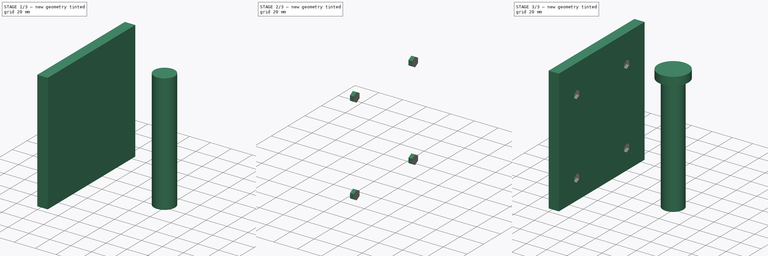
[diagram: build sequence overview — one tinted view per stage of 3, left to right]
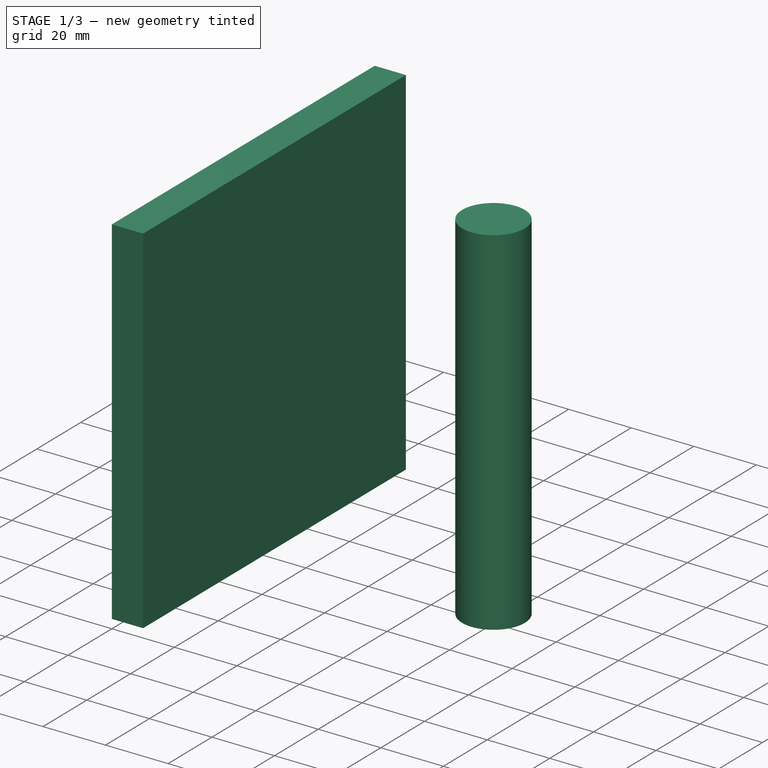
[diagram: stage 1 of 3 — iso view after this stage's code; geometry added in this stage tinted green]
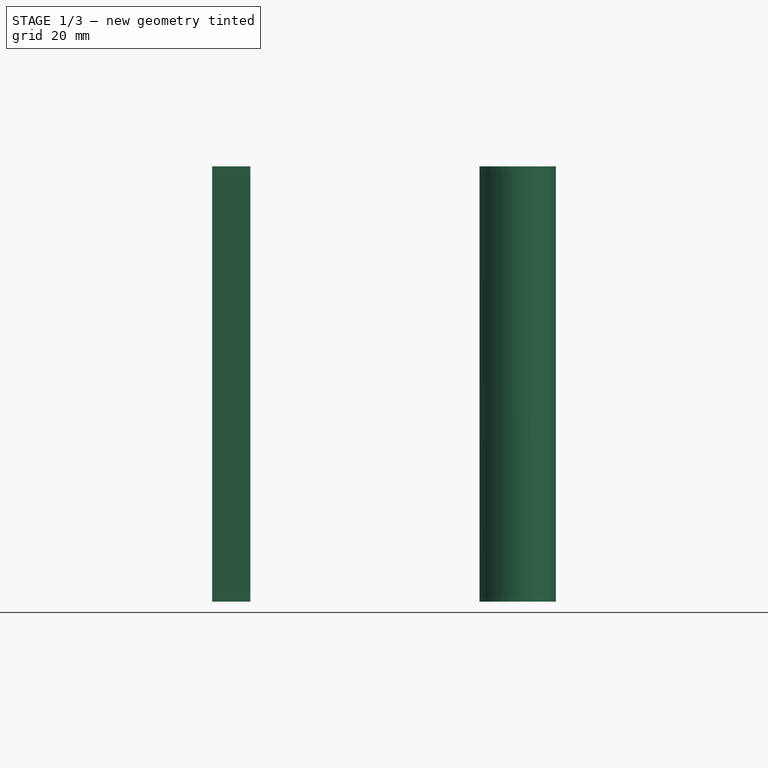
[diagram: stage 1 of 3 — front view after this stage's code; geometry added in this stage tinted green]
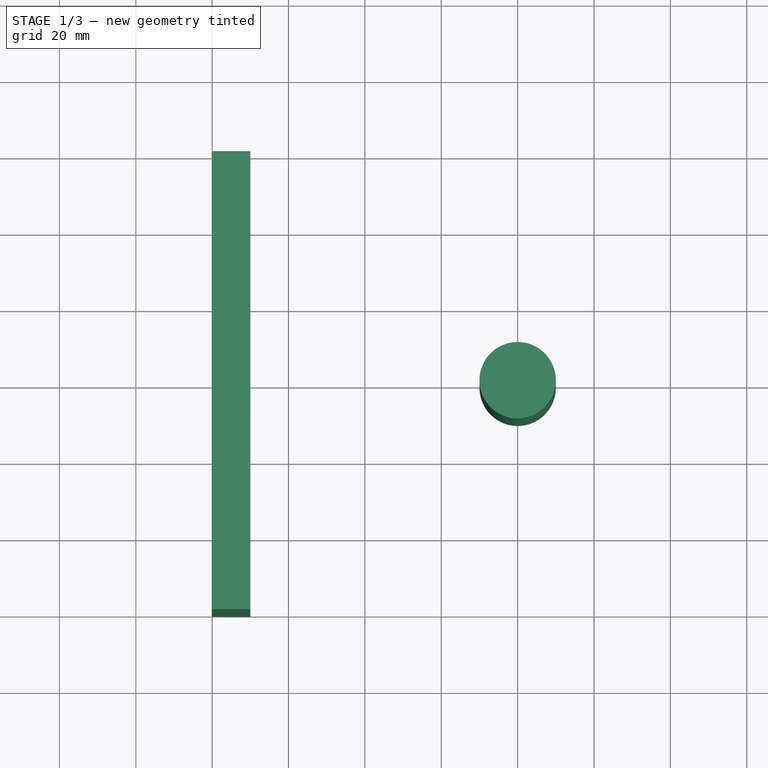
[diagram: stage 1 of 3 — top view after this stage's code; geometry added in this stage tinted green]
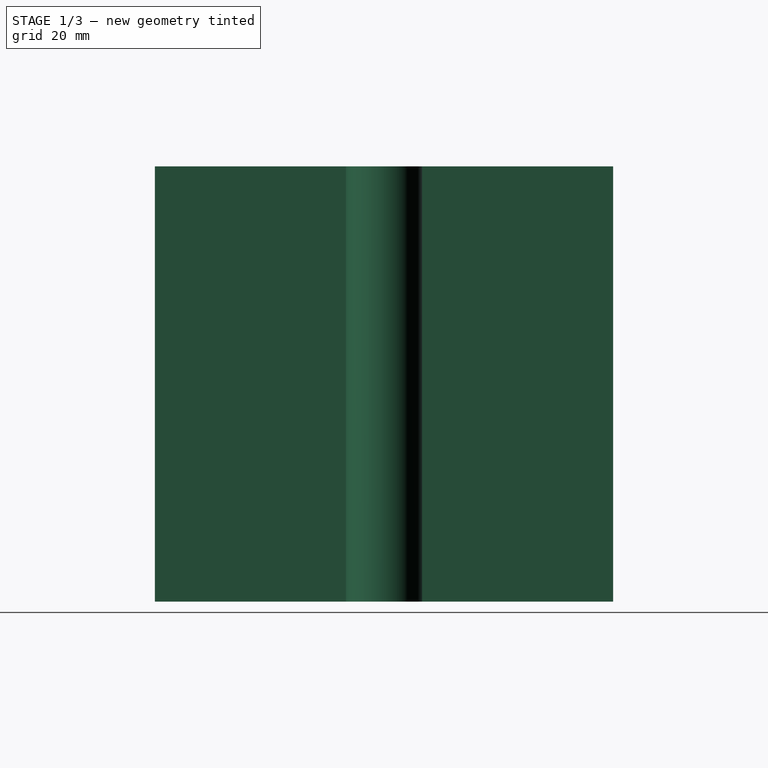
[diagram: stage 1 of 3 — right view after this stage's code; geometry added in this stage tinted green]
FCSTD DOCUMENT  (FreeCAD 0.20R29177 (Git))
Label: TPHolder
License: All rights reserved
LicenseURL: http://en.wikipedia.org/wiki/All_rights_reserved
objects: Sketcher::SketchObject×5, Part::Face×5, Part::Extrusion×5, Part::Cut×2, App::LinkGroup×1
note: 17 computed .brp shape members not serialized (recipe doc carries the construction recipe); baked Part::Feature solids carry a one-line shape summary decoded from their .brp

FEATURE [Sketcher::SketchObject] Sketch
  FullyConstrained = false
  sketch-geometry (12):
    g0: LineSegment StartX=0 StartY=0 StartZ=0 EndX=9.99986 EndY=0 EndZ=0
    g1: LineSegment StartX=9.99986 StartY=0 StartZ=0 EndX=9.99986 EndY=25 EndZ=0
    g2: LineSegment StartX=10 StartY=120 StartZ=0 EndX=0 EndY=120 EndZ=0
    g3: LineSegment StartX=0 StartY=120 StartZ=0 EndX=0 EndY=0 EndZ=0
    g4: LineSegment StartX=79.9999 StartY=60 StartZ=0 EndX=9.99986 EndY=60 EndZ=0
    g5: LineSegment StartX=79.9999 StartY=75 StartZ=0 EndX=79.9999 EndY=45 EndZ=0
    g6: LineSegment StartX=79.9999 StartY=45 StartZ=0 EndX=29.9999 EndY=45 EndZ=0
    g7: LineSegment StartX=79.9999 StartY=75 StartZ=0 EndX=30 EndY=75 EndZ=0
    g8: ArcOfCircle CenterX=29.9999 CenterY=25 CenterZ=0 NormalX=0 NormalY=0 NormalZ=1 AngleXU=0 Radius=20 StartAngle=1.5708 EndAngle=3.14159
    g9: LineSegment StartX=10 StartY=120 StartZ=0 EndX=10 EndY=95 EndZ=0
    g10: ArcOfCircle CenterX=30 CenterY=95 CenterZ=0 NormalX=0 NormalY=0 NormalZ=1 AngleXU=0 Radius=20 StartAngle=3.14159 EndAngle=4.71239
    g11: ArcOfCircle CenterX=79.9999 CenterY=60 CenterZ=0 NormalX=0 NormalY=0 NormalZ=1 AngleXU=0 Radius=15 StartAngle=4.71239 EndAngle=7.85398
  constraints (29):
    c: Coincident(g0,g1)
    c: Coincident(g2,g3)
    c: Coincident(g3,g0)
    c: Horizontal(g0)
    c: Horizontal(g2)
    c: Vertical(g1)
    c: Vertical(g3)
    c: Coincident(g0,g-1)
    c: DistanceY(g1,g2) = 120
    c: DistanceX(g2,g2) = 10
    c: PointOnObject(g4,g1)
    c: Perpendicular(g4,g1)
    c: DistanceY(g0,g4) = 60
    c: Vertical(g5)
    c: Coincident(g6,g5)
    c: Horizontal(g6)
    c: Coincident(g7,g5)
    c: Horizontal(g7)
    c: Tangent(g6,g8) = -1.5708
    c: Tangent(g1,g8) = 1.5708
    c: Coincident(g9,g2)
    c: Vertical(g9)
    c: Tangent(g7,g10) = 1.5708
    c: Tangent(g9,g10) = -1.5708
    c: Diameter(g10) = 40
    c: Diameter(g8) = 40
    c: Coincident(g11,g4)
    c: Coincident(g11,g7)
    c: Coincident(g11,g6)
FEATURE [Part::Face] Face
  FaceMakerClass = Part::FaceMakerBullseye
  Sources = -> [Sketch]
FEATURE [Part::Extrusion] Extrude
  Base = -> Face
  Dir = (0,0,1)
  DirMode = 2
  FaceMakerClass = Part::FaceMakerBullseye
  LengthFwd = 8
  LengthRev = 0
  Solid = false
  Symmetric = false
FEATURE [Sketcher::SketchObject] Sketch001
  ExternalGeometry = -> [Extrude]
  FullyConstrained = true
  MapMode = 5
  Placement = pos=(0,0,8) rot=(0,0,1;0rad)
  Support = -> [Extrude]
  sketch-geometry (5):
    g0: LineSegment StartX=10 StartY=120 StartZ=0 EndX=0 EndY=120 EndZ=0
    g1: LineSegment StartX=0 StartY=120 StartZ=0 EndX=0 EndY=0 EndZ=0
    g2: LineSegment StartX=0 StartY=0 StartZ=0 EndX=10 EndY=0 EndZ=0
    g3: LineSegment StartX=10 StartY=0 StartZ=0 EndX=10 EndY=120 EndZ=0
    g4: Circle CenterX=80 CenterY=60 CenterZ=0 NormalX=0 NormalY=0 NormalZ=1 AngleXU=0 Radius=10
  constraints (13):
    c: Coincident(g0,g1)
    c: Coincident(g1,g2)
    c: Coincident(g2,g3)
    c: Coincident(g3,g0)
    c: Horizontal(g0)
    c: Horizontal(g2)
    c: Vertical(g1)
    c: Vertical(g3)
    c: Coincident(g0,g-4)
    c: Coincident(g1,g-3)
    c: DistanceY(g2,g4) = 60
    c: DistanceX(g2,g4) = 70
    c: Diameter(g4) = 20
FEATURE [Part::Face] Face001
  FaceMakerClass = Part::FaceMakerBullseye
  Sources = -> [Sketch001]
FEATURE [Part::Extrusion] Extrude001
  Base = -> Sketch001
  Dir = (0,0,1)
  DirMode = 2
  FaceMakerClass = Part::FaceMakerBullseye
  LengthFwd = 114
  LengthRev = 0
  Solid = true
  Symmetric = false
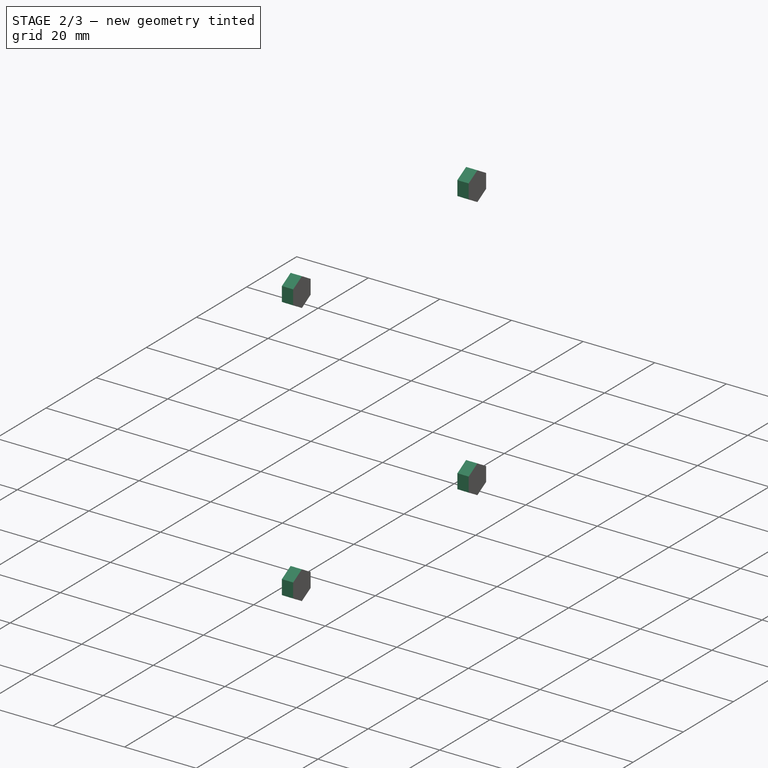
[diagram: stage 2 of 3 — iso view after this stage's code; geometry added in this stage tinted green]
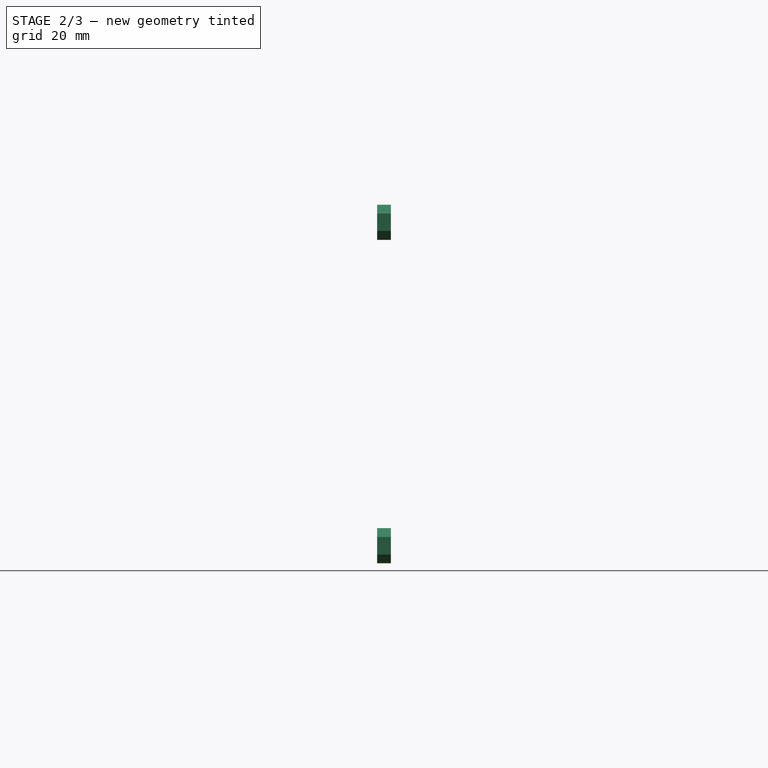
[diagram: stage 2 of 3 — front view after this stage's code; geometry added in this stage tinted green]
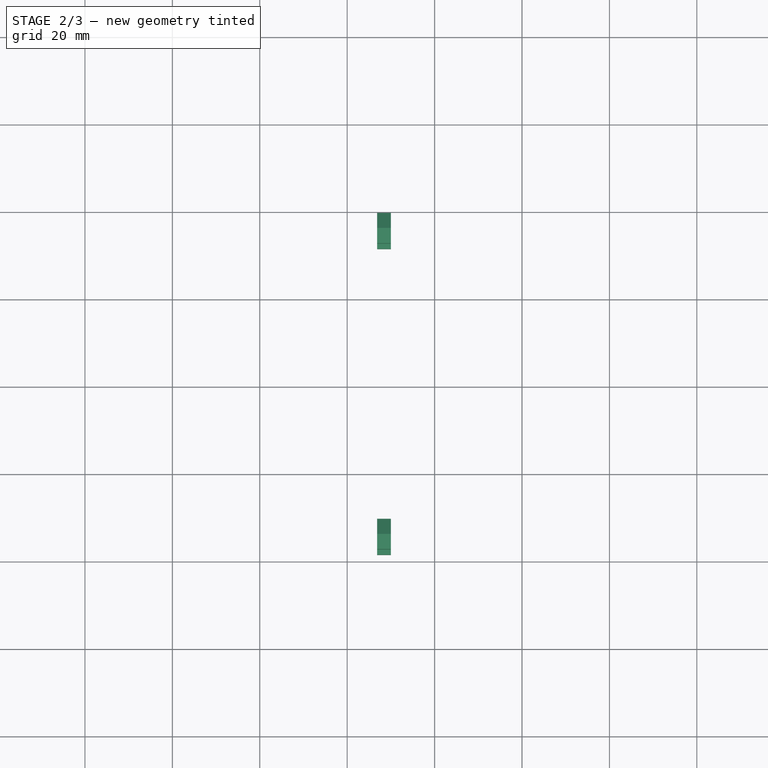
[diagram: stage 2 of 3 — top view after this stage's code; geometry added in this stage tinted green]
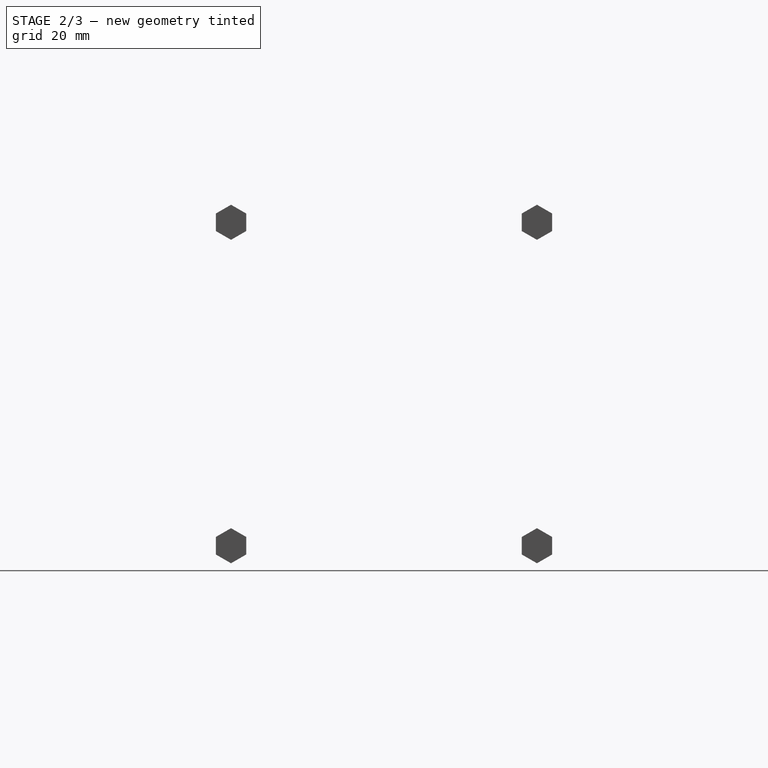
[diagram: stage 2 of 3 — right view after this stage's code; geometry added in this stage tinted green]
FEATURE [Sketcher::SketchObject] Sketch003
  ExternalGeometry = -> [Extrude001,Face001]
  FullyConstrained = true
  MapMode = 5
  Placement = pos=(10,0,0) rot=(0.57735,0.57735,0.57735;2.0944rad)
  Support = -> [Extrude001]
  sketch-geometry (4):
    g0: Circle CenterX=25 CenterY=102 CenterZ=0 NormalX=0 NormalY=0 NormalZ=1 AngleXU=0 Radius=2
    g1: Circle CenterX=95 CenterY=102 CenterZ=0 NormalX=0 NormalY=0 NormalZ=1 AngleXU=0 Radius=2
    g2: Circle CenterX=95 CenterY=28 CenterZ=0 NormalX=0 NormalY=0 NormalZ=1 AngleXU=0 Radius=2
    g3: Circle CenterX=25 CenterY=28 CenterZ=0 NormalX=0 NormalY=0 NormalZ=1 AngleXU=0 Radius=2
  constraints (12):
    c: Vertical(g0,g3)
    c: Vertical(g2,g1)
    c: Horizontal(g0,g1)
    c: Horizontal(g3,g2)
    c: DistanceX(g-1,g3) = 25
    c: DistanceY(g-5,g3) = 20
    c: DistanceY(g0,g-3) = 20
    c: Diameter(g0) = 4
    c: Diameter(g1) = 4
    c: Diameter(g3) = 4
    c: Diameter(g2) = 4
    c: DistanceX(g1,g-4) = 25
FEATURE [Part::Face] Face003
  FaceMakerClass = Part::FaceMakerBullseye
  Sources = -> [Sketch003]
FEATURE [Part::Extrusion] Extrude003
  Base = -> Face003
  Dir = (1,0,0)
  DirMode = 2
  FaceMakerClass = Part::FaceMakerBullseye
  LengthFwd = -10
  LengthRev = 0
  Solid = false
  Symmetric = false
FEATURE [Part::Cut] Cut
  Base = -> Extrude001
  Tool = -> Extrude003
FEATURE [Sketcher::SketchObject] Sketch004
  ExternalGeometry = -> [Sketch003]
  FullyConstrained = true
  MapMode = 5
  Placement = pos=(10,0,0) rot=(0.57735,0.57735,0.57735;2.0944rad)
  Support = -> [Cut]
  sketch-geometry (28):
    g0: LineSegment StartX=28.475 StartY=30.0063 StartZ=0 EndX=25 EndY=32.0126 EndZ=0
    g1: LineSegment StartX=25 StartY=32.0126 StartZ=0 EndX=21.525 EndY=30.0063 EndZ=0
    g2: LineSegment StartX=21.525 StartY=30.0063 StartZ=0 EndX=21.525 EndY=25.9937 EndZ=0
    g3: LineSegment StartX=21.525 StartY=25.9937 StartZ=0 EndX=25 EndY=23.9874 EndZ=0
    g4: LineSegment StartX=25 StartY=23.9874 StartZ=0 EndX=28.475 EndY=25.9937 EndZ=0
    g5: LineSegment StartX=28.475 StartY=25.9937 StartZ=0 EndX=28.475 EndY=30.0063 EndZ=0
    g6: Circle CenterX=25 CenterY=28 CenterZ=0 NormalX=0 NormalY=0 NormalZ=1 AngleXU=0 Radius=4.01258
    g7: LineSegment StartX=98.475 StartY=30.0063 StartZ=0 EndX=95 EndY=32.0126 EndZ=0
    g8: LineSegment StartX=95 StartY=32.0126 StartZ=0 EndX=91.525 EndY=30.0063 EndZ=0
    g9: LineSegment StartX=91.525 StartY=30.0063 StartZ=0 EndX=91.525 EndY=25.9937 EndZ=0
    g10: LineSegment StartX=91.525 StartY=25.9937 StartZ=0 EndX=95 EndY=23.9874 EndZ=0
    g11: LineSegment StartX=95 StartY=23.9874 StartZ=0 EndX=98.475 EndY=25.9937 EndZ=0
    g12: LineSegment StartX=98.475 StartY=25.9937 StartZ=0 EndX=98.475 EndY=30.0063 EndZ=0
    g13: Circle CenterX=95 CenterY=28 CenterZ=0 NormalX=0 NormalY=0 NormalZ=1 AngleXU=0 Radius=4.01258
    g14: LineSegment StartX=28.475 StartY=104.006 StartZ=0 EndX=25 EndY=106.013 EndZ=0
    g15: LineSegment StartX=25 StartY=106.013 StartZ=0 EndX=21.525 EndY=104.006 EndZ=0
    g16: LineSegment StartX=21.525 StartY=104.006 StartZ=0 EndX=21.525 EndY=99.9937 EndZ=0
    g17: LineSegment StartX=21.525 StartY=99.9937 StartZ=0 EndX=25 EndY=97.9874 EndZ=0
    g18: LineSegment StartX=25 StartY=97.9874 StartZ=0 EndX=28.475 EndY=99.9937 EndZ=0
    g19: LineSegment StartX=28.475 StartY=99.9937 StartZ=0 EndX=28.475 EndY=104.006 EndZ=0
    g20: Circle CenterX=25 CenterY=102 CenterZ=0 NormalX=0 NormalY=0 NormalZ=1 AngleXU=0 Radius=4.01258
    g21: LineSegment StartX=98.475 StartY=104.006 StartZ=0 EndX=95 EndY=106.013 EndZ=0
    g22: LineSegment StartX=95 StartY=106.013 StartZ=0 EndX=91.525 EndY=104.006 EndZ=0
    g23: LineSegment StartX=91.525 StartY=104.006 StartZ=0 EndX=91.525 EndY=99.9937 EndZ=0
    g24: LineSegment StartX=91.525 StartY=99.9937 StartZ=0 EndX=95 EndY=97.9874 EndZ=0
    g25: LineSegment StartX=95 StartY=97.9874 StartZ=0 EndX=98.475 EndY=99.9937 EndZ=0
    g26: LineSegment StartX=98.475 StartY=99.9937 StartZ=0 EndX=98.475 EndY=104.006 EndZ=0
    g27: Circle CenterX=95 CenterY=102 CenterZ=0 NormalX=0 NormalY=0 NormalZ=1 AngleXU=0 Radius=4.01258
  constraints (64):
    c: Coincident(g0,g1)
    c: Coincident(g1,g2)
    c: Coincident(g2,g3)
    c: Coincident(g3,g4)
    c: Coincident(g4,g5)
    c: Coincident(g5,g0)
    c: Equal(g0, g1-g5) x5
    c: PointOnObject(g0,g6)
    c: PointOnObject(g1,g6)
    c: PointOnObject(g2,g6)
    c: PointOnObject(g3,g6)
    c: PointOnObject(g4,g6)
    c: PointOnObject(g5,g6)
    c: Coincident(g6,g-6)
    c: Coincident(g7,g8)
    c: Coincident(g8,g9)
    c: Coincident(g9,g10)
    c: Coincident(g10,g11)
    c: Coincident(g11,g12)
    c: Coincident(g12,g7)
    c: Equal(g7, g8-g12) x5
    c: PointOnObject(g7,g13)
    c: PointOnObject(g8,g13)
    c: PointOnObject(g9,g13)
    c: PointOnObject(g10,g13)
    c: PointOnObject(g11,g13)
    c: PointOnObject(g12,g13)
    c: Coincident(g13,g-5)
    c: Coincident(g14,g15)
    c: Coincident(g15,g16)
    c: Coincident(g16,g17)
    c: Coincident(g17,g18)
    c: Coincident(g18,g19)
    c: Coincident(g19,g14)
    c: Equal(g14, g15-g19) x5
    c: PointOnObject(g14,g20)
    c: PointOnObject(g15,g20)
    c: PointOnObject(g16,g20)
    c: PointOnObject(g17,g20)
    c: PointOnObject(g18,g20)
    c: PointOnObject(g19,g20)
    c: Coincident(g20,g-3)
    c: Coincident(g21,g22)
    c: Coincident(g22,g23)
    c: Coincident(g23,g24)
    c: Coincident(g24,g25)
    c: Coincident(g25,g26)
    c: Coincident(g26,g21)
    c: Equal(g21, g22-g26) x5
    c: PointOnObject(g21,g27)
    c: PointOnObject(g22,g27)
    c: PointOnObject(g23,g27)
    c: PointOnObject(g24,g27)
    c: PointOnObject(g25,g27)
    c: PointOnObject(g26,g27)
    c: Coincident(g27,g-4)
    c: Parallel(g-2,g16)
    c: Parallel(g-2,g23)
    c: Parallel(g-2,g2)
    c: Parallel(g-2,g9)
    c: DistanceX(g1,g0) = 6.95
    c: DistanceX(g8,g7) = 6.95
    c: DistanceX(g15,g14) = 6.95
    c: DistanceX(g22,g21) = 6.95
FEATURE [Part::Face] Face004
  FaceMakerClass = Part::FaceMakerBullseye
  Sources = -> [Sketch004]
FEATURE [Part::Extrusion] Extrude004
  Base = -> Face004
  Dir = (1,0,0)
  DirMode = 2
  FaceMakerClass = Part::FaceMakerBullseye
  LengthFwd = -3.15
  LengthRev = 0
  Solid = false
  Symmetric = false
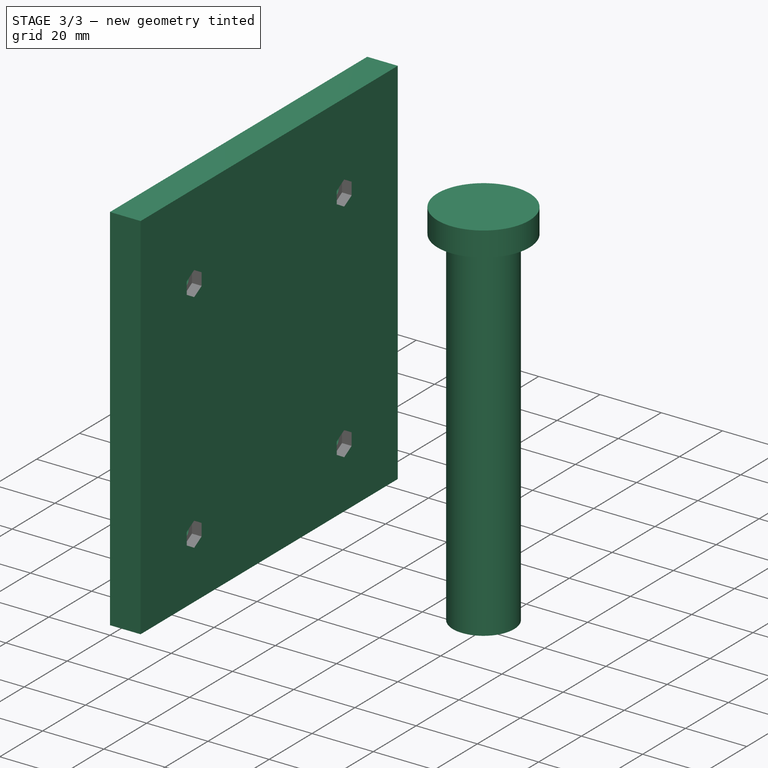
[diagram: stage 3 of 3 — iso view after this stage's code; geometry added in this stage tinted green]
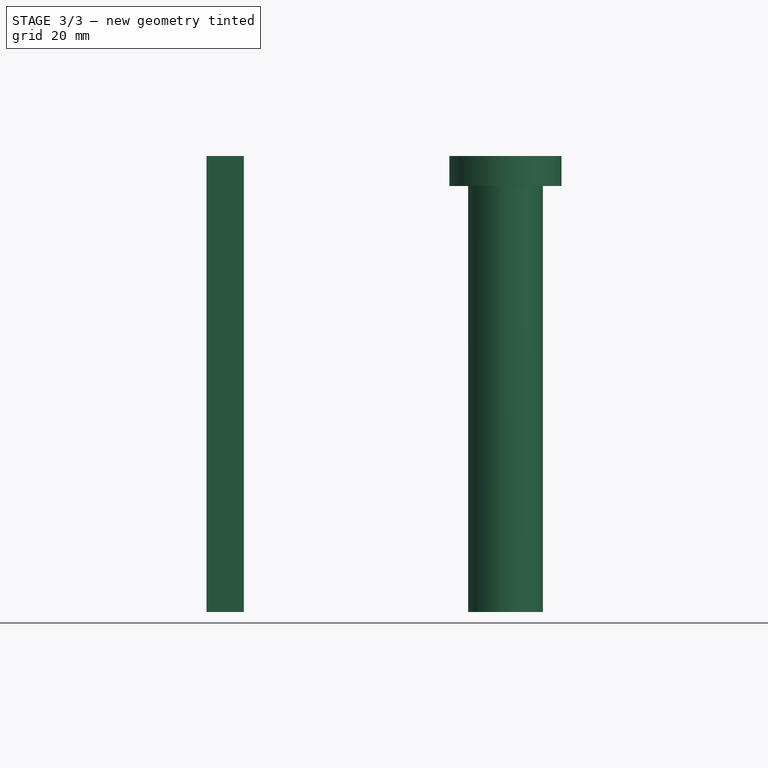
[diagram: stage 3 of 3 — front view after this stage's code; geometry added in this stage tinted green]
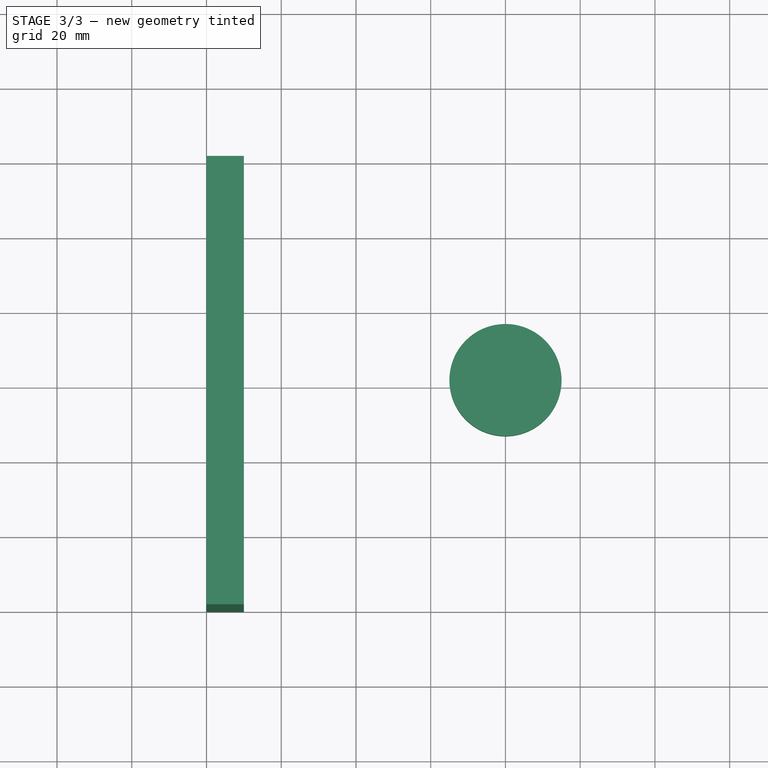
[diagram: stage 3 of 3 — top view after this stage's code; geometry added in this stage tinted green]
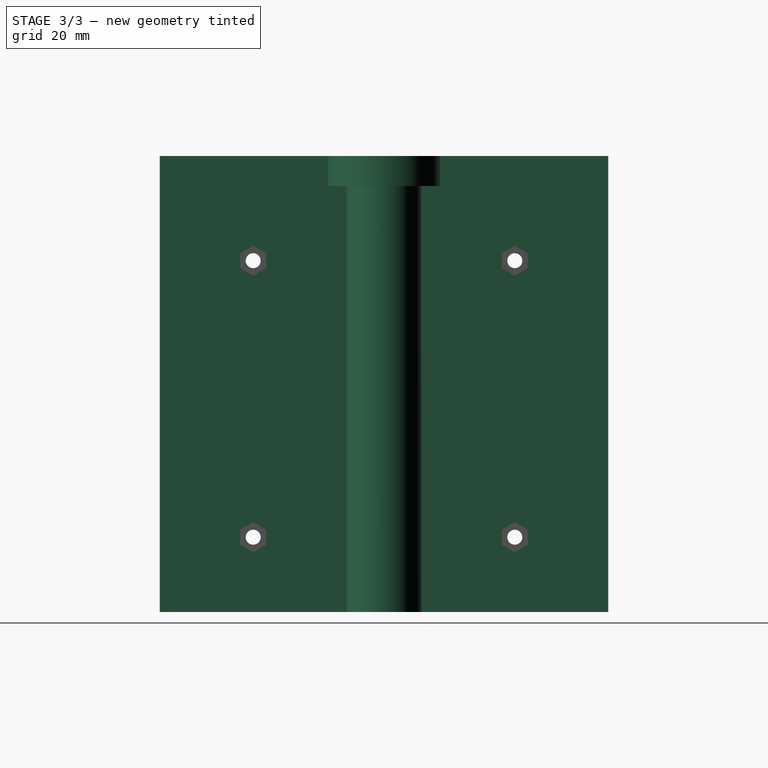
[diagram: stage 3 of 3 — right view after this stage's code; geometry added in this stage tinted green]
FEATURE [Sketcher::SketchObject] Sketch002
  ExternalGeometry = -> [Extrude001]
  FullyConstrained = true
  MapMode = 5
  Placement = pos=(0,0,122) rot=(0,0,1;0rad)
  Support = -> [Extrude001]
  sketch-geometry (5):
    g0: LineSegment StartX=10 StartY=120 StartZ=0 EndX=0 EndY=120 EndZ=0
    g1: LineSegment StartX=0 StartY=120 StartZ=0 EndX=0 EndY=0 EndZ=0
    g2: LineSegment StartX=0 StartY=0 StartZ=0 EndX=10 EndY=0 EndZ=0
    g3: LineSegment StartX=10 StartY=0 StartZ=0 EndX=10 EndY=120 EndZ=0
    g4: Circle CenterX=80 CenterY=60 CenterZ=0 NormalX=0 NormalY=0 NormalZ=1 AngleXU=0 Radius=15
  constraints (12):
    c: Coincident(g0,g1)
    c: Coincident(g1,g2)
    c: Coincident(g2,g3)
    c: Coincident(g3,g0)
    c: Horizontal(g0)
    c: Horizontal(g2)
    c: Vertical(g1)
    c: Vertical(g3)
    c: Coincident(g0,g-4)
    c: Coincident(g1,g-5)
    c: Coincident(g4,g-3)
    c: Diameter(g4) = 30
FEATURE [Part::Face] Face002
  FaceMakerClass = Part::FaceMakerBullseye
  Sources = -> [Sketch002]
FEATURE [Part::Extrusion] Extrude002
  Base = -> Sketch002
  Dir = (0,0,1)
  DirMode = 2
  FaceMakerClass = Part::FaceMakerBullseye
  LengthFwd = 8
  LengthRev = 0
  Solid = true
  Symmetric = false
FEATURE [Part::Cut] Cut001
  Base = -> Cut
  Tool = -> Extrude004
FEATURE [App::LinkGroup] LinkGroup
  ElementList = -> [Cut001,Extrude,Face001,Face002,Extrude002]
  LinkMode = 0
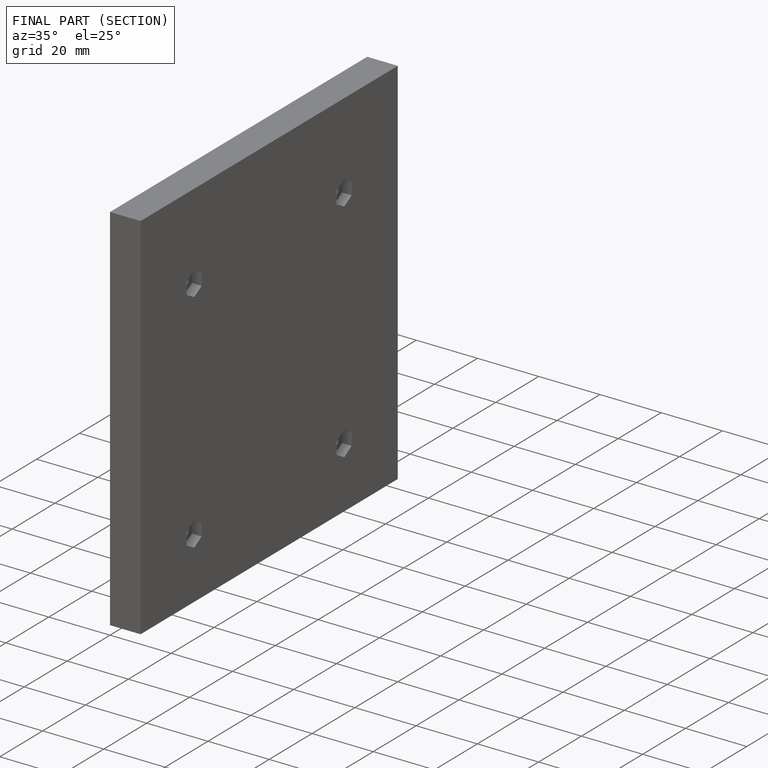
[diagram: finished part — half-section view (interior)]
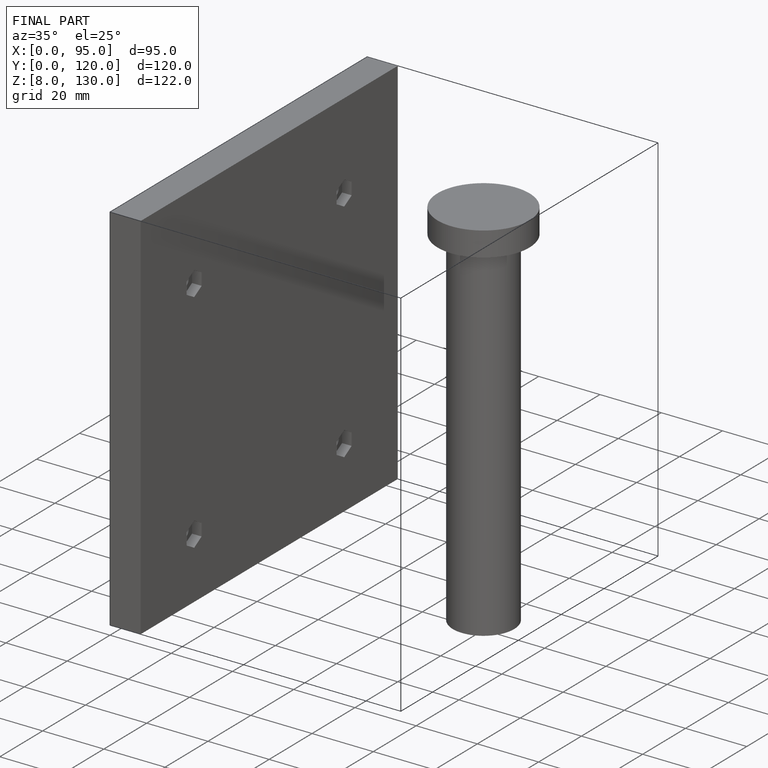
[diagram: finished part — iso view with bounding-box wireframe]
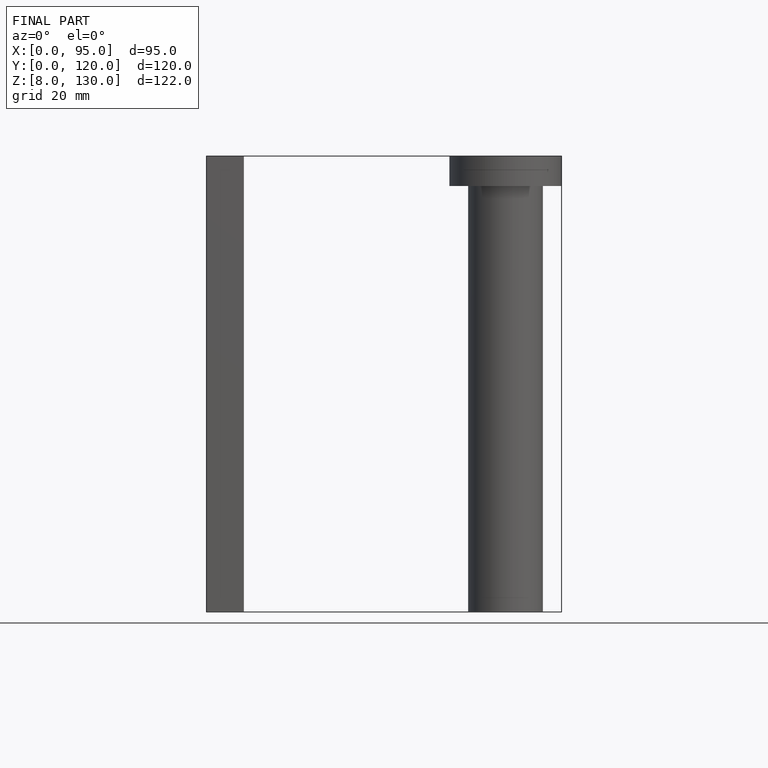
[diagram: finished part — front view with bounding-box wireframe]
